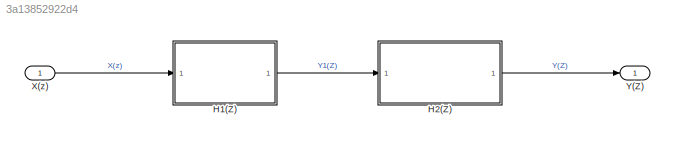
MODEL slx_3a13852922d4
KIND model
CONFIG AbsTol = auto
CONFIG EnableMultiTasking = off
CONFIG FixedStep = auto
CONFIG MaxStep = auto
CONFIG MinStep = auto
CONFIG RelTol = 1e-3
CONFIG SampleTimeConstraint = Unconstrained
CONFIG Solver = VariableStepAuto
CONFIG SolverName = VariableStepAuto
CONFIG StartTime = 0.0
CONFIG StopTime = 10.0
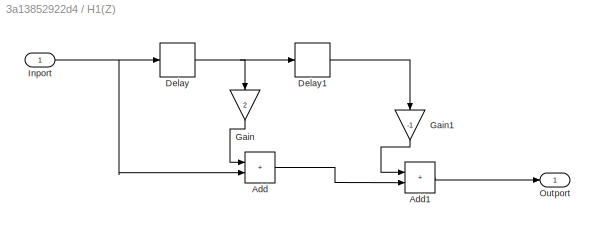
BLOCK [SubSystem] H1(Z)
  Ports = [1, 1]
  RequestExecContextInheritance = off
BLOCK [Sum] H1(Z)/Add
  IconShape = rectangular
  Ports = [2, 1]
BLOCK [Sum] H1(Z)/Add1
  IconShape = rectangular
  Ports = [2, 1]
BLOCK [Delay] H1(Z)/Delay
  DelayLength = 1
  InputPortMap = u0
  Ports = [1, 1]
BLOCK [Delay] H1(Z)/Delay1
  DelayLength = 1
  InputPortMap = u0
  Ports = [1, 1]
BLOCK [Gain] H1(Z)/Gain
  Gain = 2
  NameLocation = left
BLOCK [Gain] H1(Z)/Gain1
  Gain = -1
  NameLocation = left
BLOCK [Inport] H1(Z)/Inport
BLOCK [Outport] H1(Z)/Outport
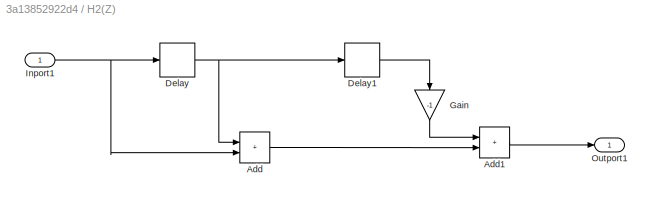
BLOCK [SubSystem] H2(Z)
  Ports = [1, 1]
  RequestExecContextInheritance = off
BLOCK [Sum] H2(Z)/Add
  IconShape = rectangular
  Ports = [2, 1]
BLOCK [Sum] H2(Z)/Add1
  IconShape = rectangular
  Ports = [2, 1]
BLOCK [Delay] H2(Z)/Delay
  DelayLength = 1
  InputPortMap = u0
  Ports = [1, 1]
BLOCK [Delay] H2(Z)/Delay1
  DelayLength = 1
  InputPortMap = u0
  Ports = [1, 1]
BLOCK [Gain] H2(Z)/Gain
  Gain = -1
  NameLocation = left
BLOCK [Inport] H2(Z)/Inport1
BLOCK [Outport] H2(Z)/Outport1
BLOCK [Inport] X(z)
  OutDataTypeStr = double
  PortDimensions = 1
  SampleTime = [0,1]
  SamplingMode = Sample based
  SignalType = real
BLOCK [Outport] Y(Z)
  OutDataTypeStr = double
  PortDimensions = 1
  SampleTime = [0,1]
  SamplingMode = Sample based
  SignalType = real
LINE H1(Z)/Add1:1 -> H1(Z)/Outport:1
LINE H1(Z)/Add:1 -> H1(Z)/Add1:2
LINE H1(Z)/Delay1:1 -> H1(Z)/Gain1:1
NET H1(Z)/Delay:1 -> H1(Z)/Delay1:1, H1(Z)/Gain:1
LINE H1(Z)/Gain1:1 -> H1(Z)/Add1:1
LINE H1(Z)/Gain:1 -> H1(Z)/Add:1
NET H1(Z)/Inport:1 -> H1(Z)/Add:2, H1(Z)/Delay:1
LINE H1(Z):1 -> H2(Z):1
LINE H2(Z)/Add1:1 -> H2(Z)/Outport1:1
LINE H2(Z)/Add:1 -> H2(Z)/Add1:2
LINE H2(Z)/Delay1:1 -> H2(Z)/Gain:1
NET H2(Z)/Delay:1 -> H2(Z)/Add:1, H2(Z)/Delay1:1
LINE H2(Z)/Gain:1 -> H2(Z)/Add1:1
NET H2(Z)/Inport1:1 -> H2(Z)/Add:2, H2(Z)/Delay:1
LINE H2(Z):1 -> Y(Z):1
LINE X(z):1 -> H1(Z):1
note: NET lines group one-source signal fan-out (src -> all destinations, sorted); 1:1 wires keep LINE
